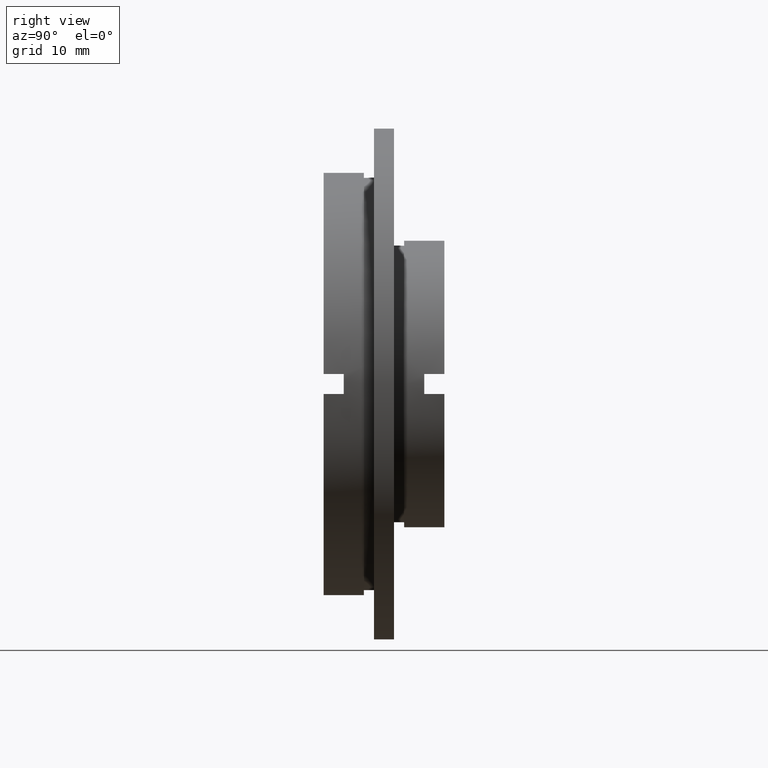
[diagram: clean part render]
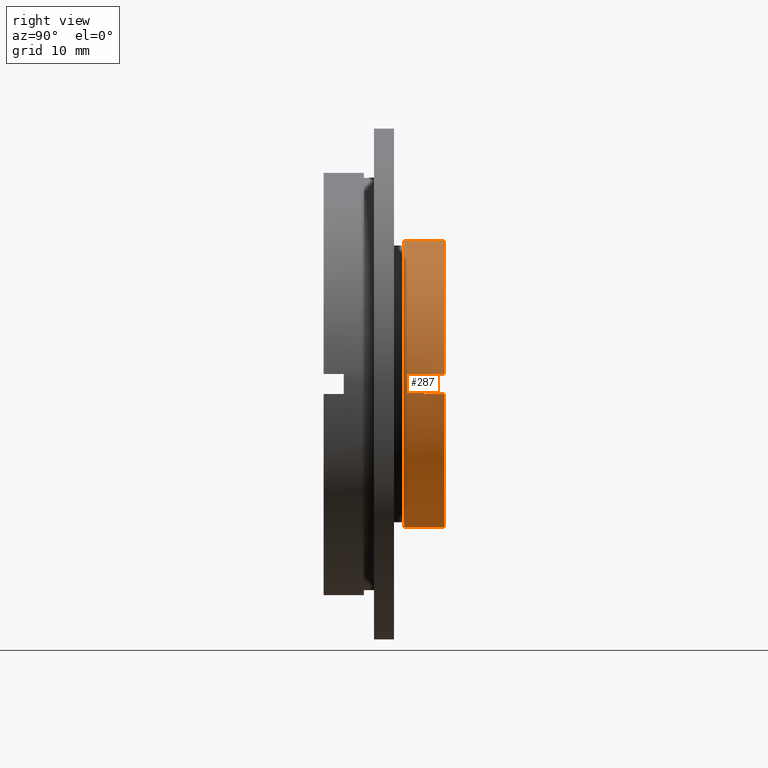
[diagram: same view with one face highlighted and labeled with its STEP entity id]
A machine part, right view. The second image highlights one B-rep face of the part: STEP entity #287.
In plain terms, the highlighted cylindrical surface (partial cylindrical patch) has radius 14.25 mm, axis along (-0, 1, -0).
Its self-contained STEP definition (entity closure, byte-faithful):
#22 = CARTESIAN_POINT ( 'NONE',  ( 1.745121688784978200E-015, 22.67749945107591400, -14.24999999999999800 ) ) ;
#32 = VERTEX_POINT ( 'NONE', #1314 ) ;
#56 = LINE ( 'NONE', #22, #1255 ) ;
#60 = VERTEX_POINT ( 'NONE', #689 ) ;
#96 = VERTEX_POINT ( 'NONE', #891 ) ;
#113 = DIRECTION ( 'NONE',  ( 0.0000000000000000000, 0.0000000000000000000, 1.000000000000000000 ) ) ;
#117 = DIRECTION ( 'NONE',  ( -0.0000000000000000000, 1.000000000000000000, -0.0000000000000000000 ) ) ;
#134 = CARTESIAN_POINT ( 'NONE',  ( 0.0000000000000000000, 22.67749945107591400, 0.0000000000000000000 ) ) ;
#138 = LINE ( 'NONE', #1331, #188 ) ;
#154 = LINE ( 'NONE', #684, #931 ) ;
#188 = VECTOR ( 'NONE', #205, 1000.000000000000000 ) ;
#192 = CIRCLE ( 'NONE', #599, 14.24999999999999800 ) ;
#205 = DIRECTION ( 'NONE',  ( -0.0000000000000000000, 1.000000000000000000, -0.0000000000000000000 ) ) ;
#208 = CARTESIAN_POINT ( 'NONE',  ( 0.0000000000000000000, 10.00000000000000000, 0.0000000000000000000 ) ) ;
#213 = VERTEX_POINT ( 'NONE', #310 ) ;
#217 = ORIENTED_EDGE ( 'NONE', *, *, #1202, .T. ) ;
#223 = DIRECTION ( 'NONE',  ( -0.0000000000000000000, 1.000000000000000000, -0.0000000000000000000 ) ) ;
#239 = EDGE_LOOP ( 'NONE', ( #533, #217, #581, #585, #718, #1117, #344, #633 ) ) ;
#242 = CARTESIAN_POINT ( 'NONE',  ( 0.0000000000000000000, 12.00000000000000000, 0.0000000000000000000 ) ) ;
#287 = ADVANCED_FACE ( 'NONE', ( #458 ), #963, .T. ) ;
#310 = CARTESIAN_POINT ( 'NONE',  ( 14.21486897582949800, 12.00000000000000000, 1.000000000000001600 ) ) ;
#344 = ORIENTED_EDGE ( 'NONE', *, *, #717, .F. ) ;
#375 = EDGE_CURVE ( 'NONE', #901, #1322, #916, .T. ) ;
#397 = VERTEX_POINT ( 'NONE', #794 ) ;
#458 = FACE_OUTER_BOUND ( 'NONE', #239, .T. ) ;
#474 = CARTESIAN_POINT ( 'NONE',  ( 14.21486897582949800, 12.00000000000000000, -0.9999999999999978900 ) ) ;
#504 = DIRECTION ( 'NONE',  ( -0.0000000000000000000, 1.000000000000000000, -0.0000000000000000000 ) ) ;
#527 = CARTESIAN_POINT ( 'NONE',  ( 0.0000000000000000000, 12.00000000000000000, 0.0000000000000000000 ) ) ;
#533 = ORIENTED_EDGE ( 'NONE', *, *, #853, .T. ) ;
#543 = DIRECTION ( 'NONE',  ( -8.881784197001252300E-016, 0.0000000000000000000, -1.000000000000000000 ) ) ;
#556 = DIRECTION ( 'NONE',  ( 0.0000000000000000000, -1.000000000000000000, 0.0000000000000000000 ) ) ;
#581 = ORIENTED_EDGE ( 'NONE', *, *, #1277, .F. ) ;
#585 = ORIENTED_EDGE ( 'NONE', *, *, #375, .F. ) ;
#590 = AXIS2_PLACEMENT_3D ( 'NONE', #242, #504, #113 ) ;
#599 = AXIS2_PLACEMENT_3D ( 'NONE', #527, #223, #646 ) ;
#619 = DIRECTION ( 'NONE',  ( -0.0000000000000000000, 1.000000000000000000, -0.0000000000000000000 ) ) ;
#633 = ORIENTED_EDGE ( 'NONE', *, *, #1056, .F. ) ;
#646 = DIRECTION ( 'NONE',  ( 0.0000000000000000000, 0.0000000000000000000, 1.000000000000000000 ) ) ;
#657 = CARTESIAN_POINT ( 'NONE',  ( 1.745121688784978200E-015, 8.000000000000000000, -14.24999999999999800 ) ) ;
#671 = CARTESIAN_POINT ( 'NONE',  ( 14.21486897582949600, 22.67749945107591400, -1.000000000000000000 ) ) ;
#683 = VECTOR ( 'NONE', #619, 1000.000000000000000 ) ;
#684 = CARTESIAN_POINT ( 'NONE',  ( 14.21486897582949800, 22.67749945107591400, 1.000000000000002900 ) ) ;
#689 = CARTESIAN_POINT ( 'NONE',  ( 0.0000000000000000000, 12.00000000000000000, 14.24999999999999800 ) ) ;
#691 = AXIS2_PLACEMENT_3D ( 'NONE', #134, #935, #1017 ) ;
#717 = EDGE_CURVE ( 'NONE', #60, #213, #1338, .T. ) ;
#718 = ORIENTED_EDGE ( 'NONE', *, *, #770, .F. ) ;
#740 = DIRECTION ( 'NONE',  ( 0.0000000000000000000, 1.000000000000000000, 0.0000000000000000000 ) ) ;
#770 = EDGE_CURVE ( 'NONE', #397, #901, #1251, .T. ) ;
#794 = CARTESIAN_POINT ( 'NONE',  ( 14.21486897582949800, 10.00000000000000000, 1.000000000000001300 ) ) ;
#839 = DIRECTION ( 'NONE',  ( 0.0000000000000000000, 0.0000000000000000000, 1.000000000000000000 ) ) ;
#843 = AXIS2_PLACEMENT_3D ( 'NONE', #208, #740, #543 ) ;
#853 = EDGE_CURVE ( 'NONE', #96, #1053, #995, .T. ) ;
#876 = CARTESIAN_POINT ( 'NONE',  ( 0.0000000000000000000, 8.000000000000000000, 0.0000000000000000000 ) ) ;
#891 = CARTESIAN_POINT ( 'NONE',  ( 0.0000000000000000000, 8.000000000000000000, 14.24999999999999800 ) ) ;
#901 = VERTEX_POINT ( 'NONE', #1077 ) ;
#916 = LINE ( 'NONE', #671, #683 ) ;
#931 = VECTOR ( 'NONE', #556, 1000.000000000000000 ) ;
#935 = DIRECTION ( 'NONE',  ( -0.0000000000000000000, 1.000000000000000000, -0.0000000000000000000 ) ) ;
#956 = DIRECTION ( 'NONE',  ( -0.0000000000000000000, 1.000000000000000000, -0.0000000000000000000 ) ) ;
#963 = CYLINDRICAL_SURFACE ( 'NONE', #691, 14.24999999999999800 ) ;
#995 = CIRCLE ( 'NONE', #1266, 14.24999999999999800 ) ;
#1011 = EDGE_CURVE ( 'NONE', #213, #397, #154, .T. ) ;
#1017 = DIRECTION ( 'NONE',  ( 0.0000000000000000000, 0.0000000000000000000, 1.000000000000000000 ) ) ;
#1053 = VERTEX_POINT ( 'NONE', #657 ) ;
#1056 = EDGE_CURVE ( 'NONE', #96, #60, #138, .T. ) ;
#1077 = CARTESIAN_POINT ( 'NONE',  ( 14.21486897582949800, 10.00000000000000000, -0.9999999999999974500 ) ) ;
#1117 = ORIENTED_EDGE ( 'NONE', *, *, #1011, .F. ) ;
#1202 = EDGE_CURVE ( 'NONE', #1053, #32, #56, .T. ) ;
#1251 = CIRCLE ( 'NONE', #843, 14.24999999999999800 ) ;
#1255 = VECTOR ( 'NONE', #117, 1000.000000000000000 ) ;
#1266 = AXIS2_PLACEMENT_3D ( 'NONE', #876, #956, #839 ) ;
#1277 = EDGE_CURVE ( 'NONE', #1322, #32, #192, .T. ) ;
#1314 = CARTESIAN_POINT ( 'NONE',  ( 1.745121688784978200E-015, 12.00000000000000000, -14.24999999999999800 ) ) ;
#1322 = VERTEX_POINT ( 'NONE', #474 ) ;
#1331 = CARTESIAN_POINT ( 'NONE',  ( 0.0000000000000000000, 22.67749945107591400, 14.24999999999999800 ) ) ;
#1338 = CIRCLE ( 'NONE', #590, 14.24999999999999800 ) ;